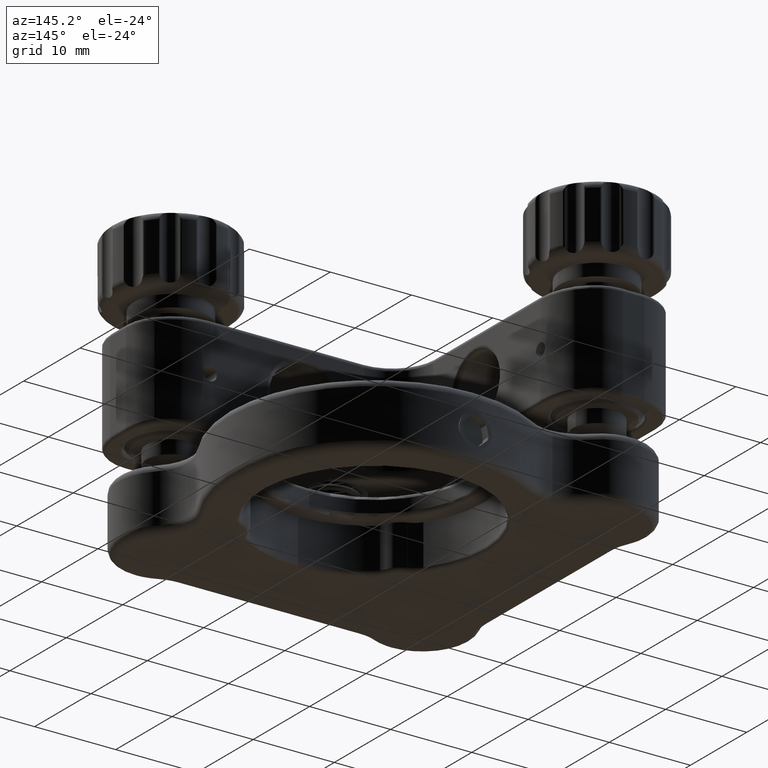
[diagram: clean part render]
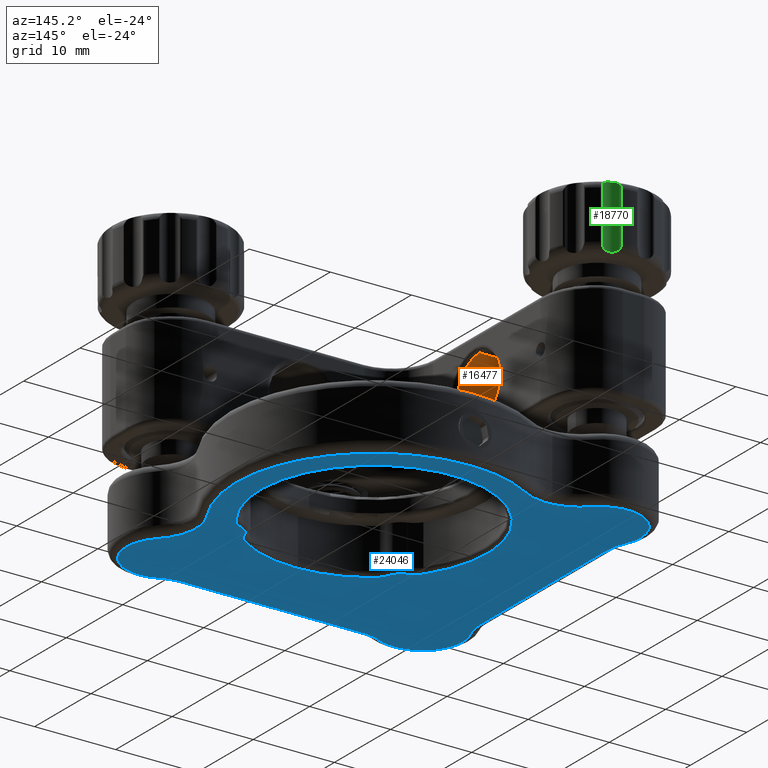
[diagram: same view with three faces highlighted in distinct colors, each labeled with its STEP entity id]
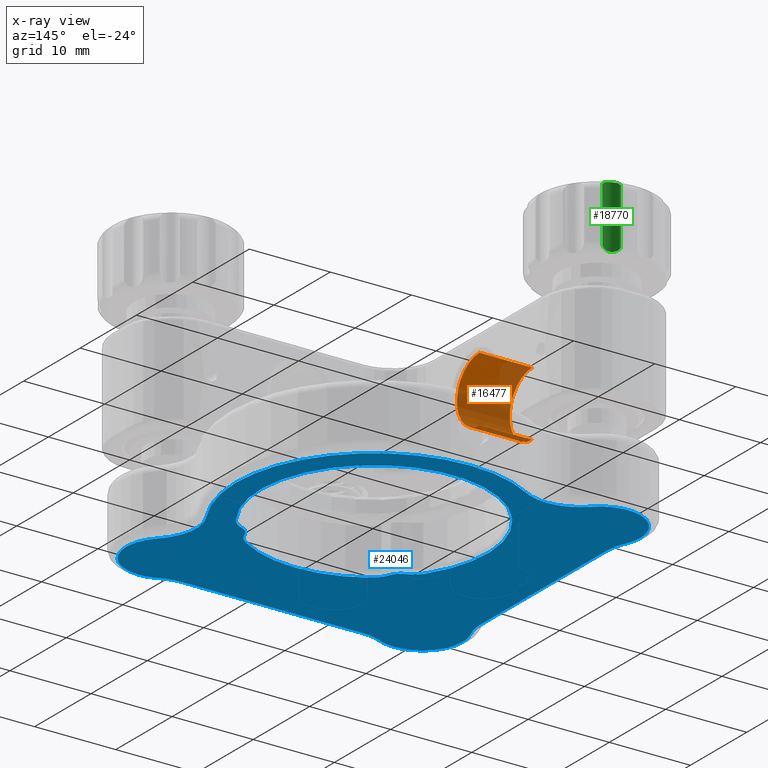
[diagram: x-ray of the same camera — body ghosted, the three highlighted faces saturated]
A machine part, auxiliary view with three faces highlighted in distinct colors.
The next image is the same camera in x-ray (body ghosted, the three faces saturated) — at least one of them is partly hidden behind the body in this view.
Their STEP definitions:

[orange] entity #16477 — the highlighted cylindrical surface (partial cylindrical patch) has radius 4 mm, axis along (1, -0, -0).
#43 = CARTESIAN_POINT ( 'NONE',  ( 7.000000000000001776, 19.49999999999995737, 3.999999999999998224 ) ) ;
#624 = CARTESIAN_POINT ( 'NONE',  ( 7.000000000000001776, 19.49999999999995737, -9.032514039510399969E-16 ) ) ;
#1650 = CIRCLE ( 'NONE', #2466, 3.999999999999998224 ) ;
#1850 = DIRECTION ( 'NONE',  ( 1.000000000000000000, -1.110223024625156294E-16, -7.703719777548941702E-34 ) ) ;
#1914 = LINE ( 'NONE', #21599, #21192 ) ;
#1992 = CARTESIAN_POINT ( 'NONE',  ( 6.500000000000002665, 19.49999999999995737, -4.000000000000000000 ) ) ;
#2243 = ORIENTED_EDGE ( 'NONE', *, *, #3228, .T. ) ;
#2466 = AXIS2_PLACEMENT_3D ( 'NONE', #19255, #1850, #9580 ) ;
#3228 = EDGE_CURVE ( 'NONE', #5421, #11662, #12089, .T. ) ;
#3880 = EDGE_CURVE ( 'NONE', #23442, #16809, #1914, .T. ) ;
#4395 = AXIS2_PLACEMENT_3D ( 'NONE', #624, #8349, #16093 ) ;
#4529 = AXIS2_PLACEMENT_3D ( 'NONE', #9330, #24326, #6926 ) ;
#4822 = CARTESIAN_POINT ( 'NONE',  ( 6.500000000000002665, 19.49999999999995737, 3.999999999999998224 ) ) ;
#5421 = VERTEX_POINT ( 'NONE', #13732 ) ;
#6330 = ORIENTED_EDGE ( 'NONE', *, *, #20399, .T. ) ;
#6575 = CYLINDRICAL_SURFACE ( 'NONE', #4395, 3.999999999999999112 ) ;
#6926 = DIRECTION ( 'NONE',  ( 0.000000000000000000, 0.000000000000000000, -1.000000000000000000 ) ) ;
#7763 = DIRECTION ( 'NONE',  ( 1.000000000000000000, -1.110223024625156294E-16, -7.703719777548941702E-34 ) ) ;
#8349 = DIRECTION ( 'NONE',  ( 1.000000000000000000, -1.110223024625156294E-16, -7.703719777548941702E-34 ) ) ;
#9330 = CARTESIAN_POINT ( 'NONE',  ( 6.500000000000002665, 19.49999999999995737, -9.032514039510399969E-16 ) ) ;
#9404 = CIRCLE ( 'NONE', #4529, 3.999999999999999112 ) ;
#9580 = DIRECTION ( 'NONE',  ( -1.533343436975556833E-17, 0.000000000000000000, 1.000000000000000000 ) ) ;
#11662 = VERTEX_POINT ( 'NONE', #4822 ) ;
#12089 = LINE ( 'NONE', #43, #21605 ) ;
#13732 = CARTESIAN_POINT ( 'NONE',  ( -6.133373747902224866E-17, 19.49999999999995737, 3.999999999999997335 ) ) ;
#16093 = DIRECTION ( 'NONE',  ( 0.000000000000000000, 0.000000000000000000, 1.000000000000000000 ) ) ;
#16477 = ADVANCED_FACE ( 'NONE', ( #21943 ), #6575, .F. ) ;
#16809 = VERTEX_POINT ( 'NONE', #1992 ) ;
#17167 = CARTESIAN_POINT ( 'NONE',  ( 2.407412430484044269E-32, 19.49999999999995737, -3.999999999999999112 ) ) ;
#18639 = EDGE_CURVE ( 'NONE', #5421, #23442, #1650, .T. ) ;
#19255 = CARTESIAN_POINT ( 'NONE',  ( -4.586464242518198613E-48, 19.49999999999995737, -9.032514039510399969E-16 ) ) ;
#19910 = EDGE_LOOP ( 'NONE', ( #22842, #20677, #2243, #6330 ) ) ;
#20399 = EDGE_CURVE ( 'NONE', #11662, #16809, #9404, .T. ) ;
#20677 = ORIENTED_EDGE ( 'NONE', *, *, #18639, .F. ) ;
#21192 = VECTOR ( 'NONE', #23493, 1000.000000000000000 ) ;
#21599 = CARTESIAN_POINT ( 'NONE',  ( 7.000000000000001776, 19.49999999999995737, -4.000000000000000000 ) ) ;
#21605 = VECTOR ( 'NONE', #7763, 1000.000000000000000 ) ;
#21943 = FACE_OUTER_BOUND ( 'NONE', #19910, .T. ) ;
#22842 = ORIENTED_EDGE ( 'NONE', *, *, #3880, .F. ) ;
#23442 = VERTEX_POINT ( 'NONE', #17167 ) ;
#23493 = DIRECTION ( 'NONE',  ( 1.000000000000000000, -1.110223024625156294E-16, -7.703719777548941702E-34 ) ) ;
#24326 = DIRECTION ( 'NONE',  ( 1.000000000000000000, -1.110223024625156294E-16, -7.703719777548941702E-34 ) ) ;

[blue] entity #24046 — the highlighted planar face has unit normal (0, 0, -1).
#11 = CARTESIAN_POINT ( 'NONE',  ( 8.700000000000114753, 8.699999999999953104, -18.00000000000000711 ) ) ;
#40 = ORIENTED_EDGE ( 'NONE', *, *, #18634, .T. ) ;
#94 = CIRCLE ( 'NONE', #1315, 13.99999999999999822 ) ;
#156 = VERTEX_POINT ( 'NONE', #8755 ) ;
#294 = DIRECTION ( 'NONE',  ( -2.312964634635743056E-15, -1.000000000000000000, 0.000000000000000000 ) ) ;
#343 = DIRECTION ( 'NONE',  ( -0.000000000000000000, 2.775557561562891967E-17, 1.000000000000000000 ) ) ;
#482 = ORIENTED_EDGE ( 'NONE', *, *, #9542, .T. ) ;
#541 = CARTESIAN_POINT ( 'NONE',  ( -4.545454545454472139, 29.41701104774733722, -18.00000000000000711 ) ) ;
#678 = VERTEX_POINT ( 'NONE', #16203 ) ;
#711 = CIRCLE ( 'NONE', #18147, 2.999999999999999112 ) ;
#713 = CIRCLE ( 'NONE', #769, 6.000000000000000888 ) ;
#769 = AXIS2_PLACEMENT_3D ( 'NONE', #21423, #24051, #8423 ) ;
#807 = EDGE_CURVE ( 'NONE', #678, #21997, #7307, .T. ) ;
#867 = DIRECTION ( 'NONE',  ( -0.000000000000000000, 2.775557561562891967E-17, 1.000000000000000000 ) ) ;
#933 = CIRCLE ( 'NONE', #18764, 3.000000000000000000 ) ;
#1253 = CARTESIAN_POINT ( 'NONE',  ( 28.67197329741521372, 13.42752885297069199, -18.00000000000000711 ) ) ;
#1315 = AXIS2_PLACEMENT_3D ( 'NONE', #3645, #9357, #17342 ) ;
#1473 = CARTESIAN_POINT ( 'NONE',  ( 28.40898845881157442, 9.351210681033801819, -18.00000000000000711 ) ) ;
#2150 = AXIS2_PLACEMENT_3D ( 'NONE', #19795, #21320, #15725 ) ;
#2867 = CARTESIAN_POINT ( 'NONE',  ( 27.22859964167342994, 7.826579439653199799, -18.00000000000000711 ) ) ;
#2891 = CARTESIAN_POINT ( 'NONE',  ( 10.32802670258479694, 13.42752885297073639, -18.00000000000000711 ) ) ;
#2944 = DIRECTION ( 'NONE',  ( -1.734723475976802558E-15, -1.000000000000000000, 0.000000000000000000 ) ) ;
#3284 = ORIENTED_EDGE ( 'NONE', *, *, #5930, .T. ) ;
#3371 = DIRECTION ( 'NONE',  ( -0.000000000000000000, 2.775557561562891967E-17, 1.000000000000000000 ) ) ;
#3489 = CARTESIAN_POINT ( 'NONE',  ( 19.50000000000002487, 19.49999999999992539, -18.00000000000000711 ) ) ;
#3645 = CARTESIAN_POINT ( 'NONE',  ( 19.50000000000002487, 19.49999999999992539, -18.00000000000000711 ) ) ;
#3655 = AXIS2_PLACEMENT_3D ( 'NONE', #8076, #6421, #15827 ) ;
#3687 = EDGE_CURVE ( 'NONE', #18793, #5824, #933, .T. ) ;
#3968 = VERTEX_POINT ( 'NONE', #19818 ) ;
#4081 = CARTESIAN_POINT ( 'NONE',  ( -9.999999999999984013, 4.582575694955849599, -18.00000000000000711 ) ) ;
#4096 = ORIENTED_EDGE ( 'NONE', *, *, #3687, .T. ) ;
#4152 = CIRCLE ( 'NONE', #23604, 5.000000000000004441 ) ;
#4291 = VERTEX_POINT ( 'NONE', #4635 ) ;
#4364 = CIRCLE ( 'NONE', #18577, 3.000000000000000000 ) ;
#4578 = AXIS2_PLACEMENT_3D ( 'NONE', #11, #15618, #13313 ) ;
#4635 = CARTESIAN_POINT ( 'NONE',  ( -3.999999999999986233, 4.582575694955836276, -18.00000000000000711 ) ) ;
#4795 = CARTESIAN_POINT ( 'NONE',  ( 4.582575694955815848, -10.00000000000001954, -18.00000000000000711 ) ) ;
#5027 = DIRECTION ( 'NONE',  ( -3.469446951953614189E-15, -1.000000000000000000, 0.000000000000000000 ) ) ;
#5144 = DIRECTION ( 'NONE',  ( -0.000000000000000000, 2.775557561562891967E-17, 1.000000000000000000 ) ) ;
#5252 = ORIENTED_EDGE ( 'NONE', *, *, #11487, .T. ) ;
#5301 = EDGE_LOOP ( 'NONE', ( #7930, #18154, #19160, #5252, #10891, #14815, #8995, #17326, #12422, #22989, #3284, #12113, #20941, #21087, #25092 ) ) ;
#5594 = CIRCLE ( 'NONE', #19794, 5.999999999999998224 ) ;
#5647 = DIRECTION ( 'NONE',  ( -0.000000000000000000, 2.775557561562891967E-17, 1.000000000000000000 ) ) ;
#5824 = VERTEX_POINT ( 'NONE', #20042 ) ;
#5930 = EDGE_CURVE ( 'NONE', #9102, #11422, #4152, .T. ) ;
#6043 = DIRECTION ( 'NONE',  ( -5.782411586589358625E-16, -1.000000000000000000, 0.000000000000000000 ) ) ;
#6395 = CIRCLE ( 'NONE', #11665, 5.999999999999998224 ) ;
#6421 = DIRECTION ( 'NONE',  ( 0.000000000000000000, -2.775557561562891967E-17, -1.000000000000000000 ) ) ;
#6545 = CARTESIAN_POINT ( 'NONE',  ( 7.771464153072663805, 39.28487924874288240, -18.00000000000000355 ) ) ;
#6861 = FACE_OUTER_BOUND ( 'NONE', #5301, .T. ) ;
#6971 = ORIENTED_EDGE ( 'NONE', *, *, #16592, .T. ) ;
#7089 = ORIENTED_EDGE ( 'NONE', *, *, #15651, .T. ) ;
#7209 = VERTEX_POINT ( 'NONE', #22607 ) ;
#7288 = CARTESIAN_POINT ( 'NONE',  ( 31.49999999999995737, -5.000000000000071942, -18.00000000000000711 ) ) ;
#7307 = LINE ( 'NONE', #11001, #11817 ) ;
#7428 = DIRECTION ( 'NONE',  ( -2.775557561562888984E-15, -1.000000000000000000, 0.000000000000000000 ) ) ;
#7483 = DIRECTION ( 'NONE',  ( 0.000000000000000000, -2.775557561562891967E-17, -1.000000000000000000 ) ) ;
#7637 = VERTEX_POINT ( 'NONE', #13121 ) ;
#7687 = FACE_BOUND ( 'NONE', #16982, .T. ) ;
#7930 = ORIENTED_EDGE ( 'NONE', *, *, #21232, .T. ) ;
#8076 = CARTESIAN_POINT ( 'NONE',  ( 19.50000000000002487, 19.49999999999992539, -18.00000000000000711 ) ) ;
#8300 = CIRCLE ( 'NONE', #11546, 5.999999999999996447 ) ;
#8423 = DIRECTION ( 'NONE',  ( -5.782411586589356455E-15, -1.000000000000000000, 0.000000000000000000 ) ) ;
#8482 = ORIENTED_EDGE ( 'NONE', *, *, #12172, .T. ) ;
#8596 = EDGE_CURVE ( 'NONE', #21997, #156, #5594, .T. ) ;
#8702 = EDGE_CURVE ( 'NONE', #24632, #14269, #94, .T. ) ;
#8727 = ORIENTED_EDGE ( 'NONE', *, *, #14087, .T. ) ;
#8738 = DIRECTION ( 'NONE',  ( 1.301042606982605715E-15, -1.000000000000000000, 0.000000000000000000 ) ) ;
#8755 = CARTESIAN_POINT ( 'NONE',  ( 2.082988952252645021, -4.545454545454559181, -18.00000000000000711 ) ) ;
#8995 = ORIENTED_EDGE ( 'NONE', *, *, #12203, .T. ) ;
#9102 = VERTEX_POINT ( 'NONE', #24578 ) ;
#9142 = EDGE_CURVE ( 'NONE', #11422, #16484, #24037, .T. ) ;
#9213 = CARTESIAN_POINT ( 'NONE',  ( 31.49999999999997158, -6.765421556309547668E-14, -18.00000000000000711 ) ) ;
#9281 = AXIS2_PLACEMENT_3D ( 'NONE', #3489, #3371, #18988 ) ;
#9357 = DIRECTION ( 'NONE',  ( -0.000000000000000000, 2.775557561562891967E-17, 1.000000000000000000 ) ) ;
#9402 = CARTESIAN_POINT ( 'NONE',  ( 19.49999999999999289, 5.499999999999927169, -18.00000000000000711 ) ) ;
#9437 = VERTEX_POINT ( 'NONE', #12196 ) ;
#9452 = CARTESIAN_POINT ( 'NONE',  ( -3.999999999999986233, 4.582575694955836276, -18.00000000000000711 ) ) ;
#9542 = EDGE_CURVE ( 'NONE', #20450, #9437, #10686, .T. ) ;
#9567 = LINE ( 'NONE', #9452, #14724 ) ;
#9702 = CARTESIAN_POINT ( 'NONE',  ( 19.50000000000002487, 19.49999999999992539, -18.00000000000000711 ) ) ;
#9822 = CARTESIAN_POINT ( 'NONE',  ( 7.771464153072649594, 33.28487924874288240, -18.00000000000000355 ) ) ;
#10637 = DIRECTION ( 'NONE',  ( -0.000000000000000000, 2.775557561562891967E-17, 1.000000000000000000 ) ) ;
#10673 = EDGE_CURVE ( 'NONE', #21173, #14833, #18009, .T. ) ;
#10686 = CIRCLE ( 'NONE', #17567, 2.000000000000005329 ) ;
#10891 = ORIENTED_EDGE ( 'NONE', *, *, #15471, .T. ) ;
#11001 = CARTESIAN_POINT ( 'NONE',  ( 4.582575694955830059, -4.000000000000019540, -18.00000000000000711 ) ) ;
#11422 = VERTEX_POINT ( 'NONE', #7288 ) ;
#11452 = AXIS2_PLACEMENT_3D ( 'NONE', #9213, #24695, #7428 ) ;
#11487 = EDGE_CURVE ( 'NONE', #4291, #18512, #9567, .T. ) ;
#11546 = AXIS2_PLACEMENT_3D ( 'NONE', #23810, #15825, #14153 ) ;
#11665 = AXIS2_PLACEMENT_3D ( 'NONE', #13908, #343, #6043 ) ;
#11773 = AXIS2_PLACEMENT_3D ( 'NONE', #9702, #5647, #13373 ) ;
#11817 = VECTOR ( 'NONE', #12894, 1000.000000000000000 ) ;
#12074 = DIRECTION ( 'NONE',  ( -2.310651670001107050E-15, -1.000000000000000000, 0.000000000000000000 ) ) ;
#12113 = ORIENTED_EDGE ( 'NONE', *, *, #9142, .T. ) ;
#12172 = EDGE_CURVE ( 'NONE', #14269, #25043, #711, .T. ) ;
#12196 = CARTESIAN_POINT ( 'NONE',  ( 29.64878931896602055, 10.59101154118821952, -18.00000000000000711 ) ) ;
#12203 = EDGE_CURVE ( 'NONE', #14833, #12300, #22665, .T. ) ;
#12300 = VERTEX_POINT ( 'NONE', #9822 ) ;
#12376 = CARTESIAN_POINT ( 'NONE',  ( 25.57247114702912327, 10.32802670258464062, -18.00000000000000711 ) ) ;
#12422 = ORIENTED_EDGE ( 'NONE', *, *, #18428, .T. ) ;
#12894 = DIRECTION ( 'NONE',  ( -1.000000000000000000, 1.873734833701938941E-15, -2.155745465314373462E-32 ) ) ;
#13103 = ORIENTED_EDGE ( 'NONE', *, *, #8702, .T. ) ;
#13121 = CARTESIAN_POINT ( 'NONE',  ( 10.83108220009720135, 34.12360640124473576, -18.00000000000000355 ) ) ;
#13296 = DIRECTION ( 'NONE',  ( -2.310651670001107050E-15, -1.000000000000000000, 0.000000000000000000 ) ) ;
#13313 = DIRECTION ( 'NONE',  ( -2.602085213965205908E-15, -1.000000000000000000, 0.000000000000000000 ) ) ;
#13331 = AXIS2_PLACEMENT_3D ( 'NONE', #24743, #7483, #13296 ) ;
#13373 = DIRECTION ( 'NONE',  ( -3.965082230804130614E-15, -1.000000000000000000, 0.000000000000000000 ) ) ;
#13523 = DIRECTION ( 'NONE',  ( 1.924004014442848617E-31, 5.551115123125782702E-17, -1.000000000000000000 ) ) ;
#13848 = DIRECTION ( 'NONE',  ( 0.000000000000000000, -2.775557561562891967E-17, -1.000000000000000000 ) ) ;
#13873 = DIRECTION ( 'NONE',  ( 2.310651670001107050E-15, 1.000000000000000000, 5.551115123125782702E-17 ) ) ;
#13908 = CARTESIAN_POINT ( 'NONE',  ( -9.999999999999932498, 26.91742430504416816, -18.00000000000000711 ) ) ;
#14087 = EDGE_CURVE ( 'NONE', #22347, #17141, #20236, .T. ) ;
#14121 = CARTESIAN_POINT ( 'NONE',  ( 7.826579439653372994, 11.77140035832641196, -18.00000000000000711 ) ) ;
#14153 = DIRECTION ( 'NONE',  ( -5.782411586589360400E-15, -1.000000000000000000, 0.000000000000000000 ) ) ;
#14269 = VERTEX_POINT ( 'NONE', #14121 ) ;
#14569 = CIRCLE ( 'NONE', #13331, 4.999999999999998224 ) ;
#14605 = CIRCLE ( 'NONE', #3655, 16.99999999999999645 ) ;
#14619 = CARTESIAN_POINT ( 'NONE',  ( 31.17342056034663855, 11.77140035832635689, -18.00000000000000711 ) ) ;
#14705 = EDGE_CURVE ( 'NONE', #14748, #7209, #14569, .T. ) ;
#14706 = DIRECTION ( 'NONE',  ( -0.000000000000000000, 2.775557561562891967E-17, 1.000000000000000000 ) ) ;
#14724 = VECTOR ( 'NONE', #13873, 1000.000000000000000 ) ;
#14748 = VERTEX_POINT ( 'NONE', #19043 ) ;
#14815 = ORIENTED_EDGE ( 'NONE', *, *, #10673, .T. ) ;
#14833 = VERTEX_POINT ( 'NONE', #23830 ) ;
#14874 = DIRECTION ( 'NONE',  ( -0.000000000000000000, 2.775557561562891967E-17, 1.000000000000000000 ) ) ;
#14940 = DIRECTION ( 'NONE',  ( -2.312964634635743450E-15, -1.000000000000000000, 0.000000000000000000 ) ) ;
#15406 = AXIS2_PLACEMENT_3D ( 'NONE', #4081, #21616, #294 ) ;
#15433 = PLANE ( 'NONE',  #24534 ) ;
#15471 = EDGE_CURVE ( 'NONE', #18512, #21173, #6395, .T. ) ;
#15618 = DIRECTION ( 'NONE',  ( 0.000000000000000000, -2.775557561562891967E-17, -1.000000000000000000 ) ) ;
#15651 = EDGE_CURVE ( 'NONE', #17141, #20450, #4364, .T. ) ;
#15725 = DIRECTION ( 'NONE',  ( -2.310651670001106261E-15, -1.000000000000000000, 0.000000000000000000 ) ) ;
#15825 = DIRECTION ( 'NONE',  ( -0.000000000000000000, 2.775557561562891967E-17, 1.000000000000000000 ) ) ;
#15827 = DIRECTION ( 'NONE',  ( -2.244936263028809784E-15, -1.000000000000000000, 0.000000000000000000 ) ) ;
#15931 = AXIS2_PLACEMENT_3D ( 'NONE', #23510, #13848, #12074 ) ;
#16203 = CARTESIAN_POINT ( 'NONE',  ( 26.91742430504413974, -4.000000000000063061, -18.00000000000000711 ) ) ;
#16484 = VERTEX_POINT ( 'NONE', #22081 ) ;
#16520 = CARTESIAN_POINT ( 'NONE',  ( 30.29999999999989058, 8.699999999999903366, -18.00000000000000711 ) ) ;
#16569 = AXIS2_PLACEMENT_3D ( 'NONE', #18264, #867, #8738 ) ;
#16592 = EDGE_CURVE ( 'NONE', #9437, #24632, #23056, .T. ) ;
#16599 = DIRECTION ( 'NONE',  ( -2.775557561562888984E-15, -1.000000000000000000, 0.000000000000000000 ) ) ;
#16744 = CIRCLE ( 'NONE', #15931, 4.999999999999998224 ) ;
#16768 = CIRCLE ( 'NONE', #4578, 2.000000000000003553 ) ;
#16982 = EDGE_LOOP ( 'NONE', ( #13103, #8482, #24615, #4096, #40, #8727, #7089, #482, #6971 ) ) ;
#17133 = EDGE_CURVE ( 'NONE', #12300, #7637, #23878, .T. ) ;
#17141 = VERTEX_POINT ( 'NONE', #2867 ) ;
#17326 = ORIENTED_EDGE ( 'NONE', *, *, #17133, .T. ) ;
#17342 = DIRECTION ( 'NONE',  ( -2.230358754827323520E-15, -1.000000000000000000, 0.000000000000000000 ) ) ;
#17567 = AXIS2_PLACEMENT_3D ( 'NONE', #16520, #24266, #2944 ) ;
#17857 = CIRCLE ( 'NONE', #15406, 5.999999999999999112 ) ;
#17983 = EDGE_CURVE ( 'NONE', #7209, #4291, #17857, .T. ) ;
#18009 = CIRCLE ( 'NONE', #2150, 5.000000000000004441 ) ;
#18147 = AXIS2_PLACEMENT_3D ( 'NONE', #2891, #23832, #22080 ) ;
#18154 = ORIENTED_EDGE ( 'NONE', *, *, #14705, .T. ) ;
#18264 = CARTESIAN_POINT ( 'NONE',  ( 7.771464153072663805, 39.28487924874288240, -18.00000000000000355 ) ) ;
#18428 = EDGE_CURVE ( 'NONE', #7637, #3968, #14605, .T. ) ;
#18512 = VERTEX_POINT ( 'NONE', #24577 ) ;
#18577 = AXIS2_PLACEMENT_3D ( 'NONE', #12376, #5144, #5027 ) ;
#18634 = EDGE_CURVE ( 'NONE', #5824, #22347, #21934, .T. ) ;
#18742 = DIRECTION ( 'NONE',  ( -2.312964634635743450E-15, -1.000000000000000000, 0.000000000000000000 ) ) ;
#18764 = AXIS2_PLACEMENT_3D ( 'NONE', #20604, #14874, #22998 ) ;
#18793 = VERTEX_POINT ( 'NONE', #23791 ) ;
#18988 = DIRECTION ( 'NONE',  ( -2.230358754827323520E-15, -1.000000000000000000, 0.000000000000000000 ) ) ;
#19043 = CARTESIAN_POINT ( 'NONE',  ( -1.097386070902928010E-14, -5.000000000000007105, -18.00000000000000711 ) ) ;
#19160 = ORIENTED_EDGE ( 'NONE', *, *, #17983, .T. ) ;
#19438 = AXIS2_PLACEMENT_3D ( 'NONE', #6545, #22304, #18742 ) ;
#19726 = CARTESIAN_POINT ( 'NONE',  ( 4.582575694955830059, -4.000000000000019540, -18.00000000000000711 ) ) ;
#19794 = AXIS2_PLACEMENT_3D ( 'NONE', #4795, #14706, #22468 ) ;
#19795 = CARTESIAN_POINT ( 'NONE',  ( 7.806255641895631925E-14, 31.49999999999997158, -18.00000000000000711 ) ) ;
#19818 = CARTESIAN_POINT ( 'NONE',  ( 34.12360640124477840, 10.83108220009703082, -18.00000000000000711 ) ) ;
#20042 = CARTESIAN_POINT ( 'NONE',  ( 11.77140035832657539, 7.826579439653229109, -18.00000000000000711 ) ) ;
#20236 = CIRCLE ( 'NONE', #9281, 14.00000000000000000 ) ;
#20450 = VERTEX_POINT ( 'NONE', #1473 ) ;
#20604 = CARTESIAN_POINT ( 'NONE',  ( 13.42752885297088561, 10.32802670258466549, -18.00000000000000711 ) ) ;
#20941 = ORIENTED_EDGE ( 'NONE', *, *, #24106, .T. ) ;
#21042 = AXIS2_PLACEMENT_3D ( 'NONE', #1253, #10637, #14940 ) ;
#21087 = ORIENTED_EDGE ( 'NONE', *, *, #807, .T. ) ;
#21173 = VERTEX_POINT ( 'NONE', #541 ) ;
#21232 = EDGE_CURVE ( 'NONE', #156, #14748, #16744, .T. ) ;
#21295 = DIRECTION ( 'NONE',  ( -2.310651670001107050E-15, -1.000000000000000000, -5.551115123125782702E-17 ) ) ;
#21320 = DIRECTION ( 'NONE',  ( 0.000000000000000000, -2.775557561562891967E-17, -1.000000000000000000 ) ) ;
#21423 = CARTESIAN_POINT ( 'NONE',  ( 39.28487924874293213, 7.771464153072468406, -18.00000000000000711 ) ) ;
#21477 = EDGE_CURVE ( 'NONE', #3968, #9102, #713, .T. ) ;
#21616 = DIRECTION ( 'NONE',  ( -0.000000000000000000, 2.775557561562891967E-17, 1.000000000000000000 ) ) ;
#21934 = CIRCLE ( 'NONE', #11773, 14.00000000000000000 ) ;
#21959 = CARTESIAN_POINT ( 'NONE',  ( 9.351210681033988337, 10.59101154118826926, -18.00000000000000711 ) ) ;
#21997 = VERTEX_POINT ( 'NONE', #19726 ) ;
#22080 = DIRECTION ( 'NONE',  ( -9.251858538542973800E-15, -1.000000000000000000, 0.000000000000000000 ) ) ;
#22081 = CARTESIAN_POINT ( 'NONE',  ( 29.41701104774731235, -4.545454545454616913, -18.00000000000000711 ) ) ;
#22304 = DIRECTION ( 'NONE',  ( -0.000000000000000000, 2.775557561562891967E-17, 1.000000000000000000 ) ) ;
#22318 = EDGE_CURVE ( 'NONE', #25043, #18793, #16768, .T. ) ;
#22347 = VERTEX_POINT ( 'NONE', #9402 ) ;
#22468 = DIRECTION ( 'NONE',  ( -2.312964634635743450E-15, -1.000000000000000000, 0.000000000000000000 ) ) ;
#22607 = CARTESIAN_POINT ( 'NONE',  ( -4.545454545454536088, 2.082988952252656123, -18.00000000000000711 ) ) ;
#22665 = CIRCLE ( 'NONE', #16569, 5.999999999999998224 ) ;
#22989 = ORIENTED_EDGE ( 'NONE', *, *, #21477, .T. ) ;
#22998 = DIRECTION ( 'NONE',  ( -5.782411586589356653E-16, -1.000000000000000000, 0.000000000000000000 ) ) ;
#23056 = CIRCLE ( 'NONE', #21042, 2.999999999999999112 ) ;
#23193 = CARTESIAN_POINT ( 'NONE',  ( -9.999999999999984013, 4.582575694955849599, -18.00000000000000711 ) ) ;
#23510 = CARTESIAN_POINT ( 'NONE',  ( 1.734723475976807094E-15, -8.673617379884035472E-15, -18.00000000000000711 ) ) ;
#23604 = AXIS2_PLACEMENT_3D ( 'NONE', #23826, #23956, #16599 ) ;
#23791 = CARTESIAN_POINT ( 'NONE',  ( 10.59101154118842203, 9.351210681033837346, -18.00000000000000711 ) ) ;
#23810 = CARTESIAN_POINT ( 'NONE',  ( 26.91742430504412553, -10.00000000000005862, -18.00000000000000711 ) ) ;
#23826 = CARTESIAN_POINT ( 'NONE',  ( 31.49999999999997158, -6.765421556309547668E-14, -18.00000000000000711 ) ) ;
#23830 = CARTESIAN_POINT ( 'NONE',  ( 3.532483705942167873, 35.03858147670128886, -18.00000000000000355 ) ) ;
#23832 = DIRECTION ( 'NONE',  ( -0.000000000000000000, 2.775557561562891967E-17, 1.000000000000000000 ) ) ;
#23878 = CIRCLE ( 'NONE', #19438, 5.999999999999998224 ) ;
#23956 = DIRECTION ( 'NONE',  ( 0.000000000000000000, -2.775557561562891967E-17, -1.000000000000000000 ) ) ;
#24037 = CIRCLE ( 'NONE', #11452, 5.000000000000004441 ) ;
#24046 = ADVANCED_FACE ( 'NONE', ( #7687, #6861 ), #15433, .T. ) ;
#24051 = DIRECTION ( 'NONE',  ( -0.000000000000000000, 2.775557561562891967E-17, 1.000000000000000000 ) ) ;
#24106 = EDGE_CURVE ( 'NONE', #16484, #678, #8300, .T. ) ;
#24266 = DIRECTION ( 'NONE',  ( 0.000000000000000000, -2.775557561562891967E-17, -1.000000000000000000 ) ) ;
#24534 = AXIS2_PLACEMENT_3D ( 'NONE', #23193, #13523, #21295 ) ;
#24577 = CARTESIAN_POINT ( 'NONE',  ( -3.999999999999935163, 26.91742430504415395, -18.00000000000000711 ) ) ;
#24578 = CARTESIAN_POINT ( 'NONE',  ( 35.03858147670131729, 3.532483705941993346, -18.00000000000000711 ) ) ;
#24615 = ORIENTED_EDGE ( 'NONE', *, *, #22318, .T. ) ;
#24632 = VERTEX_POINT ( 'NONE', #14619 ) ;
#24695 = DIRECTION ( 'NONE',  ( 0.000000000000000000, -2.775557561562891967E-17, -1.000000000000000000 ) ) ;
#24743 = CARTESIAN_POINT ( 'NONE',  ( 1.734723475976807094E-15, -8.673617379884035472E-15, -18.00000000000000711 ) ) ;
#25043 = VERTEX_POINT ( 'NONE', #21959 ) ;
#25092 = ORIENTED_EDGE ( 'NONE', *, *, #8596, .T. ) ;

[green] entity #18770 — the highlighted cylindrical surface (edge-blend (fillet) strip) has radius 1.5 mm, axis along (-0, -0, -1).
#271 = CARTESIAN_POINT ( 'NONE',  ( 3.483401620063980353, 37.32307304778814228, 9.732306010579092614 ) ) ;
#365 = CARTESIAN_POINT ( 'NONE',  ( 2.005751689511469760, 38.12521065138853515, 17.43255508000017429 ) ) ;
#434 = EDGE_CURVE ( 'NONE', #12793, #9709, #11532, .T. ) ;
#694 = B_SPLINE_CURVE_WITH_KNOTS ( 'NONE', 3,
 ( #20184, #10519, #2785, #271, #4193, #19699, #16368, #5309, #22478, #20813, #24363, #3046, #20684, #24116 ),
 .UNSPECIFIED., .F., .F.,
 ( 4, 2, 2, 2, 2, 2, 4 ),
 ( 0.0004549188434785053680, 0.0007454011220209319066, 0.001035883400563358554, 0.001616847957648213149, 0.002197812514733068177, 0.002488294793275488970, 0.002778777071817909762 ),
 .UNSPECIFIED. ) ;
#776 = ORIENTED_EDGE ( 'NONE', *, *, #23952, .T. ) ;
#1619 = CARTESIAN_POINT ( 'NONE',  ( 2.064725771048328440, 38.01825544721599925, 17.01531736824013663 ) ) ;
#1751 = CARTESIAN_POINT ( 'NONE',  ( 2.569979844540455360, 37.51388264736386446, 17.29766874251196995 ) ) ;
#2785 = CARTESIAN_POINT ( 'NONE',  ( 3.638633753815889271, 37.34660117209140395, 9.847792791760255682 ) ) ;
#3046 = CARTESIAN_POINT ( 'NONE',  ( 2.064498184851554896, 38.01862598933384163, 9.848200828472020163 ) ) ;
#4193 = CARTESIAN_POINT ( 'NONE',  ( 3.395869514938705258, 37.31626716752698769, 9.688054618476041213 ) ) ;
#4367 = CYLINDRICAL_SURFACE ( 'NONE', #9740, 1.500000000000004663 ) ;
#4958 = CARTESIAN_POINT ( 'NONE',  ( 3.121822883079993005, 37.32205427513446949, 17.27399028622131638 ) ) ;
#5309 = CARTESIAN_POINT ( 'NONE',  ( 2.568283074260710119, 37.51488117418741552, 9.565618380398667853 ) ) ;
#5551 = CARTESIAN_POINT ( 'NONE',  ( 3.639058750863978009, 37.34669322885243048, 17.01490933152839347 ) ) ;
#5669 = CARTESIAN_POINT ( 'NONE',  ( 2.155142040640757983, 37.88989857682960150, 17.13080414942130858 ) ) ;
#6024 = CARTESIAN_POINT ( 'NONE',  ( 3.336233931007936970, 38.81789889660606008, 17.43255508000017784 ) ) ;
#6280 = DIRECTION ( 'NONE',  ( -2.298382398226946811E-15, -4.481587383327512521E-16, -1.000000000000000000 ) ) ;
#6927 = CARTESIAN_POINT ( 'NONE',  ( 3.756659281288659447, 37.37802302527501297, 17.43255508000021337 ) ) ;
#8239 = ORIENTED_EDGE ( 'NONE', *, *, #24354, .T. ) ;
#8784 = EDGE_LOOP ( 'NONE', ( #19879, #24765, #776, #8239 ) ) ;
#9489 = CARTESIAN_POINT ( 'NONE',  ( 3.484006910745766739, 37.32313733207120521, 17.13044508328781745 ) ) ;
#9709 = VERTEX_POINT ( 'NONE', #13432 ) ;
#9740 = AXIS2_PLACEMENT_3D ( 'NONE', #6024, #6280, #10091 ) ;
#10091 = DIRECTION ( 'NONE',  ( -0.9899989802132438399, 0.1410745163973182725, 2.312964634635735561E-15 ) ) ;
#10519 = CARTESIAN_POINT ( 'NONE',  ( 3.705525940738161328, 37.36309274340832332, 9.918948543131881124 ) ) ;
#10942 = B_SPLINE_CURVE_WITH_KNOTS ( 'NONE', 3,
 ( #13152, #24719, #1619, #5669, #19019, #19144, #1751, #23068, #4958, #11259, #9489, #5551, #16634, #17228 ),
 .UNSPECIFIED., .F., .F.,
 ( 4, 2, 2, 2, 2, 2, 4 ),
 ( 0.0004549188434784942549, 0.0007454011220209374360, 0.001035883400563380671, 0.001616847957648256734, 0.002197812514733133230, 0.002488294793275573537, 0.002778777071818014279 ),
 .UNSPECIFIED. ) ;
#11259 = CARTESIAN_POINT ( 'NONE',  ( 3.396403111974273692, 37.31631290941533052, 17.17477800642820185 ) ) ;
#11408 = CARTESIAN_POINT ( 'NONE',  ( 3.756659281288663887, 37.37802302527500586, 16.86299989517818076 ) ) ;
#11532 = LINE ( 'NONE', #365, #16096 ) ;
#11794 = VERTEX_POINT ( 'NONE', #11408 ) ;
#12505 = DIRECTION ( 'NONE',  ( -2.298382398226946811E-15, -4.481587383327512521E-16, -1.000000000000000000 ) ) ;
#12793 = VERTEX_POINT ( 'NONE', #22531 ) ;
#13152 = CARTESIAN_POINT ( 'NONE',  ( 2.005751689510835600, 38.12521065138965071, 16.86299989517618059 ) ) ;
#13432 = CARTESIAN_POINT ( 'NONE',  ( 2.005751689510835600, 38.12521065138965071, 16.86299989517618059 ) ) ;
#15714 = DIRECTION ( 'NONE',  ( 2.298382398226946811E-15, 4.481587383327512521E-16, 1.000000000000000000 ) ) ;
#16096 = VECTOR ( 'NONE', #15714, 1000.000000000000000 ) ;
#16368 = CARTESIAN_POINT ( 'NONE',  ( 2.924894864401911487, 37.36242513332501858, 9.565441417488450782 ) ) ;
#16634 = CARTESIAN_POINT ( 'NONE',  ( 3.705154791141856752, 37.36298437247010895, 16.94475072643772862 ) ) ;
#17228 = CARTESIAN_POINT ( 'NONE',  ( 3.756659281288663887, 37.37802302527500586, 16.86299989517818076 ) ) ;
#18770 = ADVANCED_FACE ( 'NONE', ( #19636 ), #4367, .F. ) ;
#19019 = CARTESIAN_POINT ( 'NONE',  ( 2.210790807400515590, 37.82199125622342706, 17.17505554152437242 ) ) ;
#19144 = CARTESIAN_POINT ( 'NONE',  ( 2.405885582936921008, 37.62698791679589760, 17.27444478420911267 ) ) ;
#19636 = FACE_OUTER_BOUND ( 'NONE', #8784, .T. ) ;
#19699 = CARTESIAN_POINT ( 'NONE',  ( 3.120092404826078525, 37.32220512739704787, 9.588665375791320500 ) ) ;
#19879 = ORIENTED_EDGE ( 'NONE', *, *, #22583, .T. ) ;
#20184 = CARTESIAN_POINT ( 'NONE',  ( 3.756659281289842944, 37.37802302527531140, 10.00011026482420640 ) ) ;
#20684 = CARTESIAN_POINT ( 'NONE',  ( 2.030529210692908038, 38.07761918127490475, 9.918359433562674354 ) ) ;
#20813 = CARTESIAN_POINT ( 'NONE',  ( 2.210454642454654284, 37.82240816298255481, 9.688332153572215333 ) ) ;
#20876 = CARTESIAN_POINT ( 'NONE',  ( 3.756659281289842944, 37.37802302527531140, 10.00011026482420640 ) ) ;
#21709 = VERTEX_POINT ( 'NONE', #20876 ) ;
#22478 = CARTESIAN_POINT ( 'NONE',  ( 2.404579365820343373, 37.62813295314314388, 9.589119873779106129 ) ) ;
#22531 = CARTESIAN_POINT ( 'NONE',  ( 2.005751689511412028, 38.12521065138847121, 10.00011026482220622 ) ) ;
#22533 = VECTOR ( 'NONE', #12505, 1000.000000000000000 ) ;
#22583 = EDGE_CURVE ( 'NONE', #21709, #12793, #694, .T. ) ;
#23068 = CARTESIAN_POINT ( 'NONE',  ( 2.926789782427251740, 37.36189093216739820, 17.29749177960176354 ) ) ;
#23952 = EDGE_CURVE ( 'NONE', #9709, #11794, #10942, .T. ) ;
#24116 = CARTESIAN_POINT ( 'NONE',  ( 2.005751689511412028, 38.12521065138847121, 10.00011026482220622 ) ) ;
#24328 = LINE ( 'NONE', #6927, #22533 ) ;
#24354 = EDGE_CURVE ( 'NONE', #11794, #21709, #24328, .T. ) ;
#24363 = CARTESIAN_POINT ( 'NONE',  ( 2.154769659199450071, 37.89038007588523982, 9.732665076712594399 ) ) ;
#24719 = CARTESIAN_POINT ( 'NONE',  ( 2.030350659911054567, 38.07796213302292188, 16.94416161686850941 ) ) ;
#24765 = ORIENTED_EDGE ( 'NONE', *, *, #434, .T. ) ;